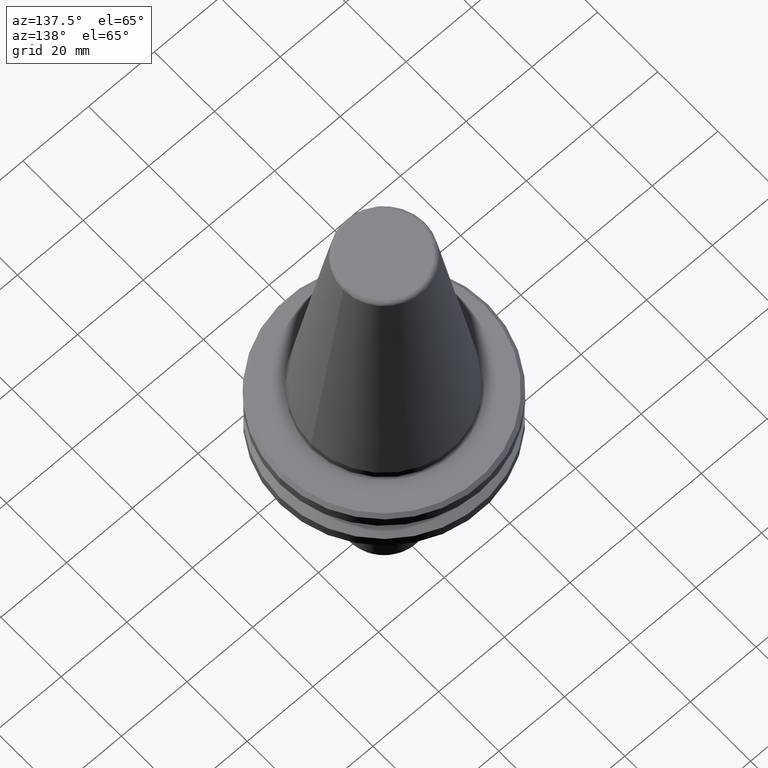
[diagram: clean part render]
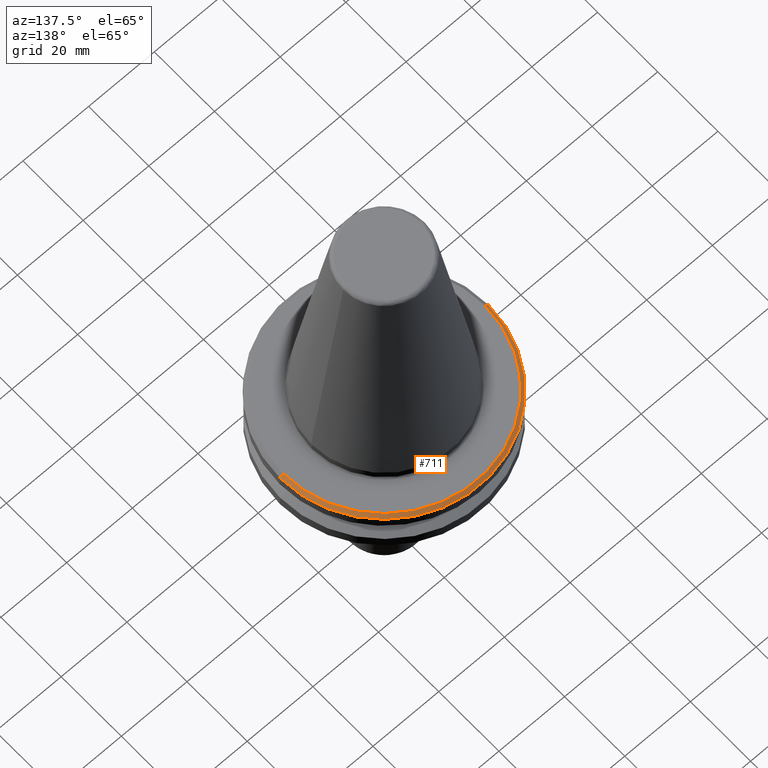
[diagram: same view with one face highlighted and labeled with its STEP entity id]
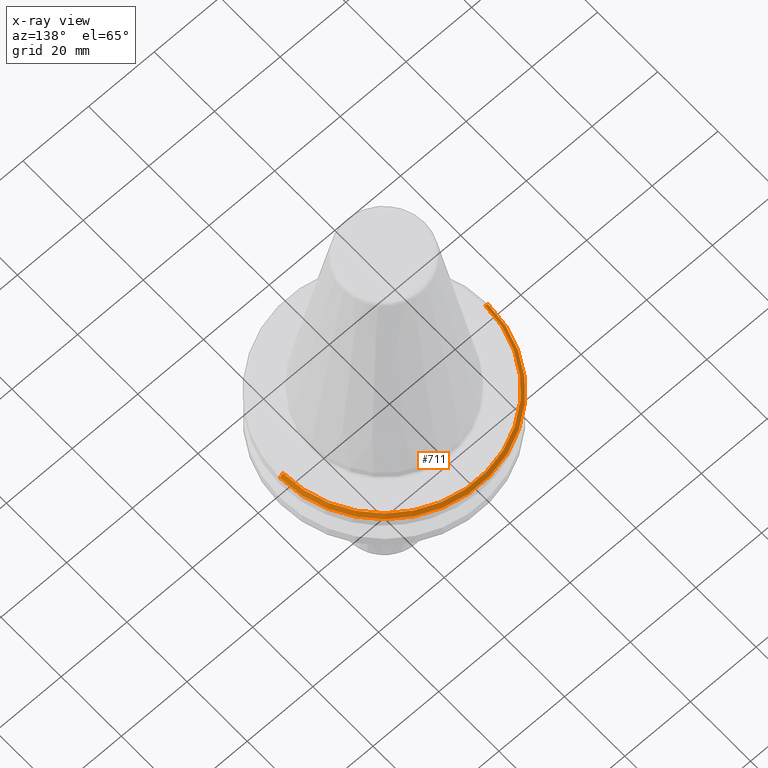
[diagram: x-ray of the same camera — body ghosted, the highlighted face saturated]
A machine part, auxiliary view. The second image highlights one B-rep face of the part: STEP entity #711.
The next image is the same camera in x-ray: the body ghosted, the highlighted face saturated — about 0% of this face is hidden behind the body in this view.
In plain terms, the highlighted conical surface has half-angle 45 deg.
Its self-contained STEP definition (entity closure, byte-faithful):
#11 = CARTESIAN_POINT ( 'NONE',  ( 30.74999999999994300, 3.827021247335470200E-015, -3.200000000000036100 ) ) ;
#22 = ORIENTED_EDGE ( 'NONE', *, *, #408, .F. ) ;
#67 = FACE_OUTER_BOUND ( 'NONE', #1117, .T. ) ;
#156 = EDGE_CURVE ( 'NONE', #1485, #1058, #434, .T. ) ;
#389 = DIRECTION ( 'NONE',  ( 0.0000000000000000000, 0.0000000000000000000, -1.000000000000000000 ) ) ;
#401 = VERTEX_POINT ( 'NONE', #966 ) ;
#405 = CARTESIAN_POINT ( 'NONE',  ( 0.0000000000000000000, 0.0000000000000000000, -4.082842712474625400 ) ) ;
#408 = EDGE_CURVE ( 'NONE', #1058, #674, #1057, .T. ) ;
#409 = DIRECTION ( 'NONE',  ( 1.000000000000000000, 0.0000000000000000000, 0.0000000000000000000 ) ) ;
#411 = DIRECTION ( 'NONE',  ( -1.000000000000000000, 0.0000000000000000000, 0.0000000000000000000 ) ) ;
#429 = CARTESIAN_POINT ( 'NONE',  ( -31.74999999999983300, 3.888253587292836200E-015, -4.199999999999926500 ) ) ;
#434 = CIRCLE ( 'NONE', #760, 30.74999999999994300 ) ;
#442 = DIRECTION ( 'NONE',  ( 1.000000000000000000, 0.0000000000000000000, 0.0000000000000000000 ) ) ;
#444 = DIRECTION ( 'NONE',  ( -0.0000000000000000000, -0.0000000000000000000, 1.000000000000000000 ) ) ;
#462 = CARTESIAN_POINT ( 'NONE',  ( 0.0000000000000000000, 0.0000000000000000000, -4.199999999999926500 ) ) ;
#465 = CARTESIAN_POINT ( 'NONE',  ( -30.74999999999994300, 0.0000000000000000000, -3.200000000000036100 ) ) ;
#476 = ORIENTED_EDGE ( 'NONE', *, *, #156, .F. ) ;
#527 = CONICAL_SURFACE ( 'NONE', #1410, 31.63284271247462300, 0.7853981633974429500 ) ;
#632 = EDGE_CURVE ( 'NONE', #401, #674, #886, .T. ) ;
#674 = VERTEX_POINT ( 'NONE', #429 ) ;
#707 = CARTESIAN_POINT ( 'NONE',  ( 31.63284271247462300, 3.873905957576372200E-015, -4.082842712474625400 ) ) ;
#711 = ADVANCED_FACE ( 'NONE', ( #67 ), #527, .T. ) ;
#749 = VECTOR ( 'NONE', #774, 1000.000000000000000 ) ;
#760 = AXIS2_PLACEMENT_3D ( 'NONE', #784, #880, #409 ) ;
#774 = DIRECTION ( 'NONE',  ( 0.7071067811865438000, 8.659560562354888500E-017, -0.7071067811865513500 ) ) ;
#784 = CARTESIAN_POINT ( 'NONE',  ( 0.0000000000000000000, 0.0000000000000000000, -3.200000000000036100 ) ) ;
#880 = DIRECTION ( 'NONE',  ( -0.0000000000000000000, -0.0000000000000000000, 1.000000000000000000 ) ) ;
#886 = CIRCLE ( 'NONE', #1302, 31.74999999999983300 ) ;
#904 = ORIENTED_EDGE ( 'NONE', *, *, #987, .T. ) ;
#966 = CARTESIAN_POINT ( 'NONE',  ( 31.74999999999983300, 0.0000000000000000000, -4.199999999999926500 ) ) ;
#987 = EDGE_CURVE ( 'NONE', #1485, #401, #1276, .T. ) ;
#995 = CARTESIAN_POINT ( 'NONE',  ( -31.63284271247462300, 0.0000000000000000000, -4.082842712474625400 ) ) ;
#1057 = LINE ( 'NONE', #995, #1289 ) ;
#1058 = VERTEX_POINT ( 'NONE', #465 ) ;
#1117 = EDGE_LOOP ( 'NONE', ( #476, #904, #1213, #22 ) ) ;
#1195 = DIRECTION ( 'NONE',  ( -0.7071067811865438000, 0.0000000000000000000, -0.7071067811865513500 ) ) ;
#1213 = ORIENTED_EDGE ( 'NONE', *, *, #632, .T. ) ;
#1276 = LINE ( 'NONE', #707, #749 ) ;
#1289 = VECTOR ( 'NONE', #1195, 1000.000000000000000 ) ;
#1302 = AXIS2_PLACEMENT_3D ( 'NONE', #462, #444, #442 ) ;
#1410 = AXIS2_PLACEMENT_3D ( 'NONE', #405, #389, #411 ) ;
#1485 = VERTEX_POINT ( 'NONE', #11 ) ;